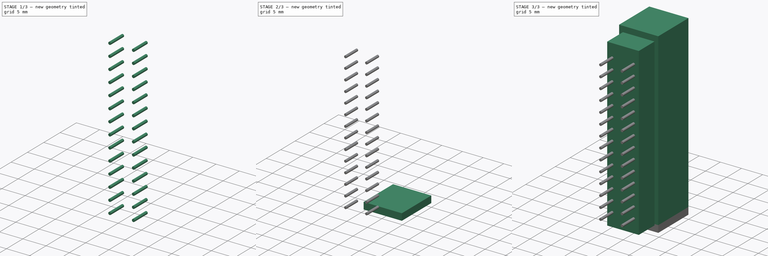
[diagram: build sequence overview — one tinted view per stage of 3, left to right]
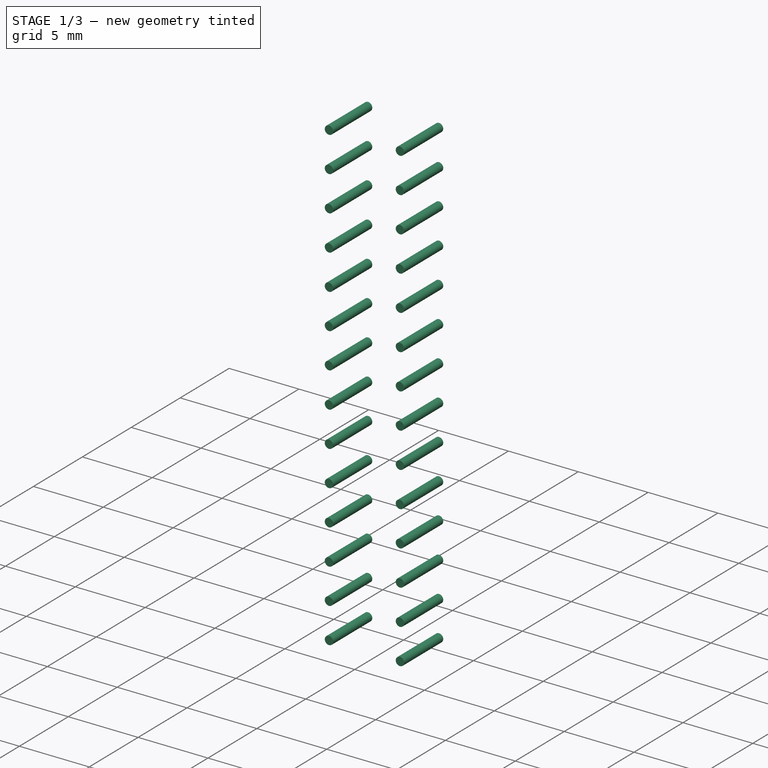
[diagram: stage 1 of 3 — iso view after this stage's code; geometry added in this stage tinted green]
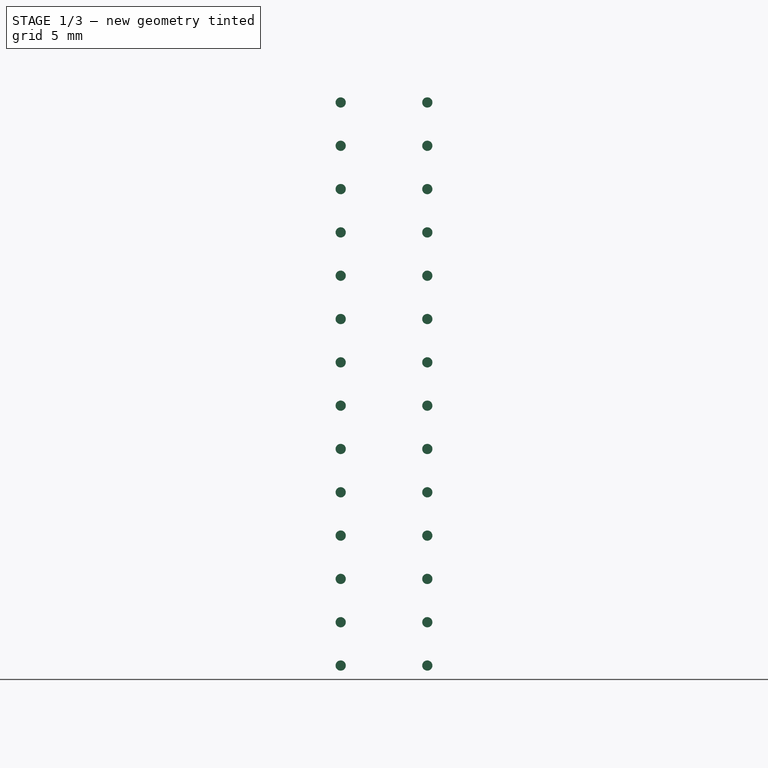
[diagram: stage 1 of 3 — front view after this stage's code; geometry added in this stage tinted green]
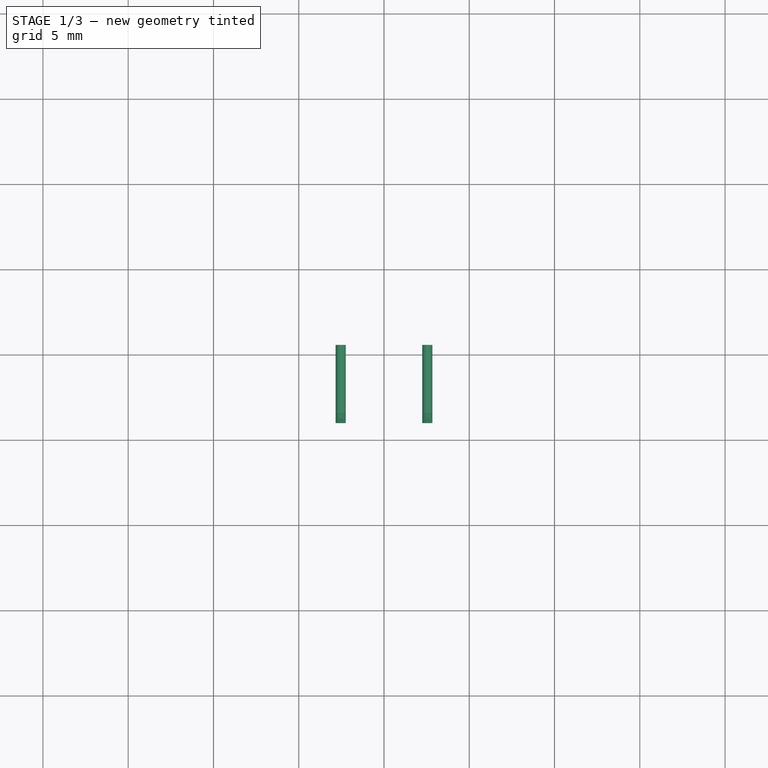
[diagram: stage 1 of 3 — top view after this stage's code; geometry added in this stage tinted green]
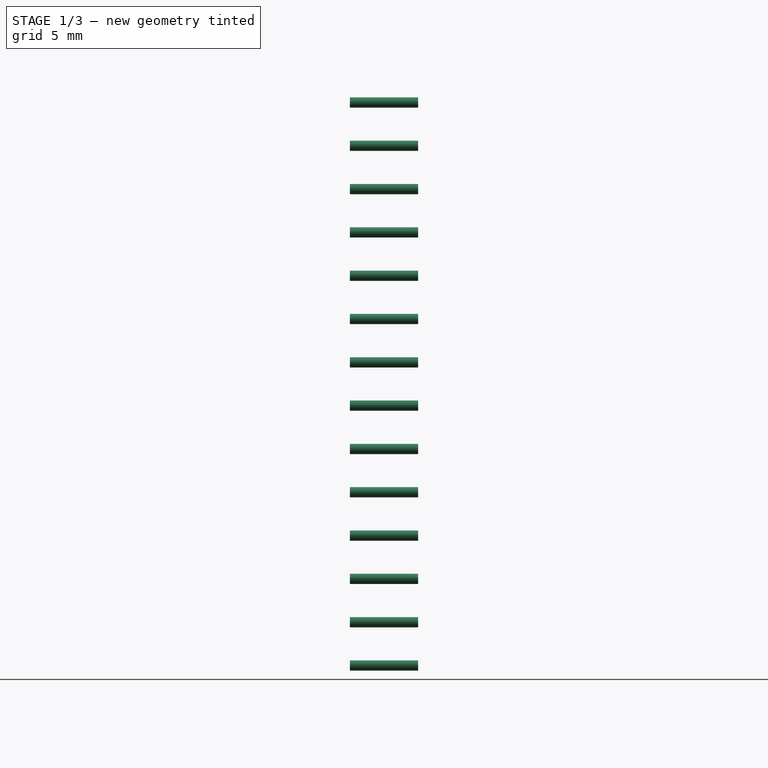
[diagram: stage 1 of 3 — right view after this stage's code; geometry added in this stage tinted green]
FCSTD DOCUMENT  (FreeCAD 1.0R39319 (Git))
Label: conector_femea_28
License: All rights reserved
LicenseURL: https://en.wikipedia.org/wiki/All_rights_reserved
objects: Sketcher::SketchObject×4, Part::Extrusion×4, Part::MultiFuse×1
note: 13 computed .brp shape members not serialized (recipe doc carries the construction recipe); baked Part::Feature solids carry a one-line shape summary decoded from their .brp

FEATURE [Sketcher::SketchObject] Sketch
  ArcFitTolerance = 1e-06
  FullyConstrained = true
  MakeInternals = false
  sketch-geometry (12):
    g0: LineSegment StartX=-4.63 StartY=15.48 StartZ=0 EndX=-4.63 EndY=5.3 EndZ=0
    g1: LineSegment StartX=4.63 StartY=5.3 StartZ=0 EndX=4.63 EndY=15.48 EndZ=0
    g2: LineSegment StartX=-3.735 StartY=5.3 StartZ=0 EndX=-3.735 EndY=0 EndZ=0
    g3: LineSegment StartX=-3.735 StartY=0 StartZ=0 EndX=3.735 EndY=0 EndZ=0
    g4: LineSegment StartX=3.735 StartY=0 StartZ=0 EndX=3.735 EndY=5.3 EndZ=0
    g5: LineSegment StartX=4.63 StartY=5.3 StartZ=0 EndX=3.735 EndY=5.3 EndZ=0
    g6: LineSegment StartX=-4.63 StartY=5.3 StartZ=0 EndX=-3.735 EndY=5.3 EndZ=0
    g7: LineSegment StartX=-4.63 StartY=15.48 StartZ=0 EndX=-1.17 EndY=15.48 EndZ=0
    g8: LineSegment StartX=4.63 StartY=15.48 StartZ=0 EndX=1.17 EndY=15.48 EndZ=0
    g9: LineSegment StartX=-1.17 StartY=8.6 StartZ=0 EndX=1.17 EndY=8.6 EndZ=0
    g10: LineSegment StartX=-1.17 StartY=15.48 StartZ=0 EndX=-1.17 EndY=8.6 EndZ=0
    g11: LineSegment StartX=1.17 StartY=15.48 StartZ=0 EndX=1.17 EndY=8.6 EndZ=0
  constraints (35):
    c: Vertical(g0)
    c: Vertical(g1)
    c: Distance(g0,g1) = 9.26
    c: Distance(g0,g0) = 10.18
    c: Coincident(g2,g3)
    c: Coincident(g3,g4)
    c: Vertical(g2)
    c: Vertical(g4)
    c: Horizontal(g3)
    c: Distance(g2,g4) = 7.47
    c: Distance(g3,g2) = 5.3
    c: Coincident(g5,g1)
    c: Coincident(g5,g4)
    c: Coincident(g6,g0)
    c: Coincident(g6,g2)
    c: Horizontal(g6)
    c: Horizontal(g5)
    c: Horizontal(g2,g4)
    c: Equal(g6,g5)
    c: Symmetric(g2,g3,g-1)
    c: Distance(g7) = 3.46
    c: Coincident(g7,g0)
    c: Horizontal(g7)
    c: Coincident(g8,g1)
    c: Horizontal(g8)
    c: Equal(g7,g8)
    c: Horizontal(g9)
    c: Coincident(g10,g7)
    c: Coincident(g10,g9)
    c: Coincident(g11,g8)
    c: Coincident(g11,g9)
    c: Vertical(g11)
    c: Vertical(g10)
    c: DistanceY(g10,g10) = 6.88
    c: Equal(g10,g11)
FEATURE [Part::Extrusion] Extrude
  Base = -> Sketch
  Dir = (0,0,1)
  DirMode = 2
  FaceMakerClass = Part::FaceMakerBullseye
  FaceMakerMode = 3
  LengthFwd = 39.3
  LengthRev = 0
  Solid = true
  Symmetric = false
FEATURE [Sketcher::SketchObject] Sketch003
  ArcFitTolerance = 1e-06
  AttachmentSupport = -> [Extrude]
  ExternalGeometry = -> [Extrude]
  FullyConstrained = true
  MakeInternals = false
  MapMode = 5
  Placement = pos=(0,0,0) rot=(1,0,0;1.5708rad)
  sketch-geometry (58):
    g0: LineSegment [constr] StartX=-2.54 StartY=36.16 StartZ=0 EndX=-2.54 EndY=33.62 EndZ=0
    g1: LineSegment [constr] StartX=-2.54 StartY=36.16 StartZ=0 EndX=0 EndY=36.16 EndZ=0
    g2: LineSegment [constr] StartX=-2e-16 StartY=36.16 StartZ=0 EndX=2.54 EndY=36.16 EndZ=0
    g3: LineSegment [constr] StartX=-2.54 StartY=33.62 StartZ=0 EndX=-2.54 EndY=31.08 EndZ=0
    g4: LineSegment [constr] StartX=-2.54 StartY=31.08 StartZ=0 EndX=-2.54 EndY=28.54 EndZ=0
    g5: LineSegment [constr] StartX=-2.54 StartY=28.54 StartZ=0 EndX=-2.54 EndY=26 EndZ=0
    g6: LineSegment [constr] StartX=-2.54 StartY=26 StartZ=0 EndX=-2.54 EndY=23.46 EndZ=0
    g7: LineSegment [constr] StartX=-2.54 StartY=23.46 StartZ=0 EndX=-2.54 EndY=20.92 EndZ=0
    g8: LineSegment [constr] StartX=-2.54 StartY=20.92 StartZ=0 EndX=-2.54 EndY=18.38 EndZ=0
    g9: LineSegment [constr] StartX=-2.54 StartY=18.38 StartZ=0 EndX=-2.54 EndY=15.84 EndZ=0
    g10: LineSegment [constr] StartX=-2.54 StartY=15.84 StartZ=0 EndX=-2.54 EndY=13.3 EndZ=0
    g11: LineSegment [constr] StartX=-2.54 StartY=13.3 StartZ=0 EndX=-2.54 EndY=10.76 EndZ=0
    g12: LineSegment [constr] StartX=-2.54 StartY=10.76 StartZ=0 EndX=-2.54 EndY=8.22 EndZ=0
    g13: LineSegment [constr] StartX=-2.54 StartY=8.22 StartZ=0 EndX=-2.54 EndY=5.68 EndZ=0
    g14: LineSegment [constr] StartX=-2.54 StartY=5.68 StartZ=0 EndX=-2.54 EndY=3.14 EndZ=0
    g15: LineSegment [constr] StartX=2.54 StartY=33.62 StartZ=0 EndX=2.54 EndY=31.08 EndZ=0
    g16: LineSegment [constr] StartX=2.54 StartY=31.08 StartZ=0 EndX=2.54 EndY=28.54 EndZ=0
    g17: LineSegment [constr] StartX=2.54 StartY=28.54 StartZ=0 EndX=2.54 EndY=26 EndZ=0
    g18: LineSegment [constr] StartX=2.54 StartY=26 StartZ=0 EndX=2.54 EndY=23.46 EndZ=0
    g19: LineSegment [constr] StartX=2.54 StartY=23.46 StartZ=0 EndX=2.54 EndY=20.92 EndZ=0
    g20: LineSegment [constr] StartX=2.54 StartY=20.92 StartZ=0 EndX=2.54 EndY=18.38 EndZ=0
    g21: LineSegment [constr] StartX=2.54 StartY=18.38 StartZ=0 EndX=2.54 EndY=15.84 EndZ=0
    g22: LineSegment [constr] StartX=2.54 StartY=15.84 StartZ=0 EndX=2.54 EndY=13.3 EndZ=0
    g23: LineSegment [constr] StartX=2.54 StartY=13.3 StartZ=0 EndX=2.54 EndY=10.76 EndZ=0
    g24: LineSegment [constr] StartX=2.54 StartY=10.76 StartZ=0 EndX=2.54 EndY=8.22 EndZ=0
    g25: LineSegment [constr] StartX=2.54 StartY=8.22 StartZ=0 EndX=2.54 EndY=5.68 EndZ=0
    g26: LineSegment [constr] StartX=2.54 StartY=5.68 StartZ=0 EndX=2.54 EndY=3.14 EndZ=0
    g27: LineSegment [constr] StartX=2.54 StartY=33.62 StartZ=0 EndX=2.54 EndY=36.16 EndZ=0
    g28: Circle CenterX=-2.54 CenterY=36.16 CenterZ=0 NormalX=0 NormalY=0 NormalZ=1 AngleXU=0 Radius=0.3
    g29: Circle CenterX=-2.54 CenterY=33.62 CenterZ=0 NormalX=0 NormalY=0 NormalZ=1 AngleXU=0 Radius=0.3
    g30: Circle CenterX=-2.54 CenterY=31.08 CenterZ=0 NormalX=0 NormalY=0 NormalZ=1 AngleXU=0 Radius=0.3
    g31: Circle CenterX=-2.54 CenterY=28.54 CenterZ=0 NormalX=0 NormalY=0 NormalZ=1 AngleXU=0 Radius=0.3
    g32: Circle CenterX=-2.54 CenterY=26 CenterZ=0 NormalX=0 NormalY=0 NormalZ=1 AngleXU=0 Radius=0.3
    g33: Circle CenterX=-2.54 CenterY=23.46 CenterZ=0 NormalX=0 NormalY=0 NormalZ=1 AngleXU=0 Radius=0.3
    g34: Circle CenterX=-2.54 CenterY=20.92 CenterZ=0 NormalX=0 NormalY=0 NormalZ=1 AngleXU=0 Radius=0.3
    g35: Circle CenterX=-2.54 CenterY=18.38 CenterZ=0 NormalX=0 NormalY=0 NormalZ=1 AngleXU=0 Radius=0.3
    g36: Circle CenterX=-2.54 CenterY=15.84 CenterZ=0 NormalX=0 NormalY=0 NormalZ=1 AngleXU=0 Radius=0.3
    g37: Circle CenterX=-2.54 CenterY=13.3 CenterZ=0 NormalX=0 NormalY=0 NormalZ=1 AngleXU=0 Radius=0.3
    g38: Circle CenterX=-2.54 CenterY=10.76 CenterZ=0 NormalX=0 NormalY=0 NormalZ=1 AngleXU=0 Radius=0.3
    g39: Circle CenterX=-2.54 CenterY=8.22 CenterZ=0 NormalX=0 NormalY=0 NormalZ=1 AngleXU=0 Radius=0.3
    g40: Circle CenterX=-2.54 CenterY=5.68 CenterZ=0 NormalX=0 NormalY=0 NormalZ=1 AngleXU=0 Radius=0.3
    g41: Circle CenterX=-2.54 CenterY=3.14 CenterZ=0 NormalX=0 NormalY=0 NormalZ=1 AngleXU=0 Radius=0.3
    g42: Circle CenterX=2.54 CenterY=3.14 CenterZ=0 NormalX=0 NormalY=0 NormalZ=1 AngleXU=0 Radius=0.3
    g43: Circle CenterX=2.54 CenterY=5.68 CenterZ=0 NormalX=0 NormalY=0 NormalZ=1 AngleXU=0 Radius=0.3
    g44: Circle CenterX=2.54 CenterY=8.22 CenterZ=0 NormalX=0 NormalY=0 NormalZ=1 AngleXU=0 Radius=0.3
    g45: Circle CenterX=2.54 CenterY=10.76 CenterZ=0 NormalX=0 NormalY=0 NormalZ=1 AngleXU=0 Radius=0.3
    g46: Circle CenterX=2.54 CenterY=13.3 CenterZ=0 NormalX=0 NormalY=0 NormalZ=1 AngleXU=0 Radius=0.3
    g47: Circle CenterX=2.54 CenterY=15.84 CenterZ=0 NormalX=0 NormalY=0 NormalZ=1 AngleXU=0 Radius=0.3
    g48: Circle CenterX=2.54 CenterY=18.38 CenterZ=0 NormalX=0 NormalY=0 NormalZ=1 AngleXU=0 Radius=0.3
    g49: Circle CenterX=2.54 CenterY=20.92 CenterZ=0 NormalX=0 NormalY=0 NormalZ=1 AngleXU=0 Radius=0.3
    g50: Circle CenterX=2.54 CenterY=23.46 CenterZ=0 NormalX=0 NormalY=0 NormalZ=1 AngleXU=0 Radius=0.3
    g51: Circle CenterX=2.54 CenterY=26 CenterZ=0 NormalX=0 NormalY=0 NormalZ=1 AngleXU=0 Radius=0.3
    g52: Circle CenterX=2.54 CenterY=28.54 CenterZ=0 NormalX=0 NormalY=0 NormalZ=1 AngleXU=0 Radius=0.3
    g53: Circle CenterX=2.54 CenterY=31.08 CenterZ=0 NormalX=0 NormalY=0 NormalZ=1 AngleXU=0 Radius=0.3
    g54: Circle CenterX=2.54 CenterY=33.62 CenterZ=0 NormalX=0 NormalY=0 NormalZ=1 AngleXU=0 Radius=0.3
    g55: Circle CenterX=2.54 CenterY=36.16 CenterZ=0 NormalX=0 NormalY=0 NormalZ=1 AngleXU=0 Radius=0.3
    g56: LineSegment [constr] StartX=-2e-16 StartY=39.3 StartZ=0 EndX=-2e-16 EndY=36.16 EndZ=0
    g57: LineSegment [constr] StartX=-1e-16 StartY=0 StartZ=0 EndX=6.2833e-12 EndY=3.14 EndZ=0
  constraints (145):
    c: Vertical(g0)
    c: Coincident(g1,g0)
    c: Horizontal(g1)
    c: Coincident(g2,g1)
    c: Horizontal(g2)
    c: Coincident(g3,g0)
    c: Vertical(g3)
    c: Coincident(g4,g3)
    c: Vertical(g4)
    c: Coincident(g5,g4)
    c: Vertical(g5)
    c: Distance(g0) = 2.54
    c: Vertical(g6)
    c: Coincident(g7,g6)
    c: Vertical(g7)
    c: Coincident(g8,g7)
    c: Vertical(g8)
    c: Equal(g0,g1)
    c: Equal(g1,g2)
    c: Equal(g2,g3)
    c: Equal(g3,g4)
    c: Equal(g4,g5)
    c: Equal(g5,g6)
    c: Equal(g6,g7)
    c: Equal(g7,g8)
    c: Coincident(g5,g6)
    c: Vertical(g9)
    c: Coincident(g10,g9)
    c: Vertical(g10)
    c: Coincident(g11,g10)
    c: Vertical(g11)
    c: Vertical(g12)
    c: Coincident(g13,g12)
    c: Vertical(g13)
    c: Coincident(g14,g13)
    c: Vertical(g14)
    c: Equal(g9,g10)
    c: Equal(g10,g11)
    c: Equal(g11,g12)
    c: Equal(g12,g13)
    c: Equal(g13,g14)
    c: Coincident(g11,g12)
    c: Equal(g9,g0)
    c: Coincident(g8,g9)
    c: Vertical(g15)
    c: Coincident(g16,g15)
    c: Vertical(g16)
    c: Coincident(g17,g16)
    c: Vertical(g17)
    c: Vertical(g18)
    c: Coincident(g19,g18)
    c: Vertical(g19)
    c: Coincident(g20,g19)
    c: Vertical(g20)
    c: Equal(g15,g16)
    c: Equal(g16,g17)
    c: Equal(g17,g18)
    c: Equal(g18,g19)
    c: Equal(g19,g20)
    c: Coincident(g17,g18)
    c: Vertical(g21)
    c: Coincident(g22,g21)
    c: Vertical(g22)
    c: Coincident(g23,g22)
    c: Vertical(g23)
    c: Vertical(g24)
    c: Coincident(g25,g24)
    c: Vertical(g25)
    c: Coincident(g26,g25)
    c: Vertical(g26)
    c: Equal(g21,g22)
    c: Equal(g22,g23)
    c: Equal(g23,g24)
    c: Equal(g24,g25)
    c: Equal(g25,g26)
    c: Coincident(g23,g24)
    c: Coincident(g20,g21)
    c: Coincident(g27,g15)
    c: Vertical(g27)
    c: Equal(g0,g27)
    c: Equal(g27,g15)
    c: Coincident(g2,g27)
    c: Equal(g21,g20)
    c: Diameter(g28) = 0.6
    c: Coincident(g28,g0)
    c: Coincident(g29,g0)
    c: Coincident(g30,g3)
    c: Coincident(g31,g4)
    c: Coincident(g32,g5)
    c: Coincident(g33,g6)
    c: Coincident(g34,g7)
    c: Coincident(g35,g8)
    c: Coincident(g36,g9)
    c: Coincident(g37,g10)
    c: Coincident(g38,g11)
    c: Coincident(g39,g12)
    c: Coincident(g40,g13)
    c: Coincident(g41,g14)
    c: Coincident(g42,g26)
    c: Coincident(g43,g25)
    c: Coincident(g44,g24)
    c: Coincident(g45,g23)
    c: Coincident(g46,g22)
    c: Coincident(g47,g21)
    c: Coincident(g48,g20)
    c: Coincident(g49,g19)
    c: Coincident(g50,g18)
    c: Coincident(g51,g17)
    c: Coincident(g52,g16)
    c: Coincident(g53,g15)
    c: Coincident(g54,g15)
    c: Coincident(g55,g2)
    c: Equal(g28,g29)
    c: Equal(g29,g55)
    c: Equal(g55,g54)
    c: Equal(g54,g53)
    c: Equal(g53,g30)
    c: Equal(g30,g31)
    c: Equal(g31,g52)
    c: Equal(g52,g51)
    c: Equal(g51,g32)
    c: Equal(g32,g33)
    c: Equal(g33,g34)
    c: Equal(g34,g50)
    c: Equal(g50,g49)
    c: Equal(g49,g48)
    c: Equal(g48,g47)
    c: Equal(g47,g35)
    c: Equal(g35,g36)
    c: Equal(g36,g37)
    c: Equal(g37,g38)
    c: Equal(g38,g46)
    c: Equal(g46,g45)
    c: Equal(g45,g39)
    c: Equal(g39,g40)
    c: Equal(g40,g41)
    c: Equal(g41,g42)
    c: Equal(g42,g43)
    c: Equal(g43,g44)
    c: Symmetric(g-3,g-3,g56)
    c: Coincident(g56,g1)
    c: Vertical(g56)
    c: Symmetric(g-4,g-4,g57)
    c: Symmetric(g14,g26,g57)
    c: Equal(g57,g56)
FEATURE [Part::Extrusion] Extrude003
  Base = -> Sketch003
  Dir = (0,-1,2e-16)
  DirMode = 2
  FaceMakerClass = Part::FaceMakerBullseye
  FaceMakerMode = 3
  LengthFwd = 4
  LengthRev = 0
  Solid = true
  Symmetric = false
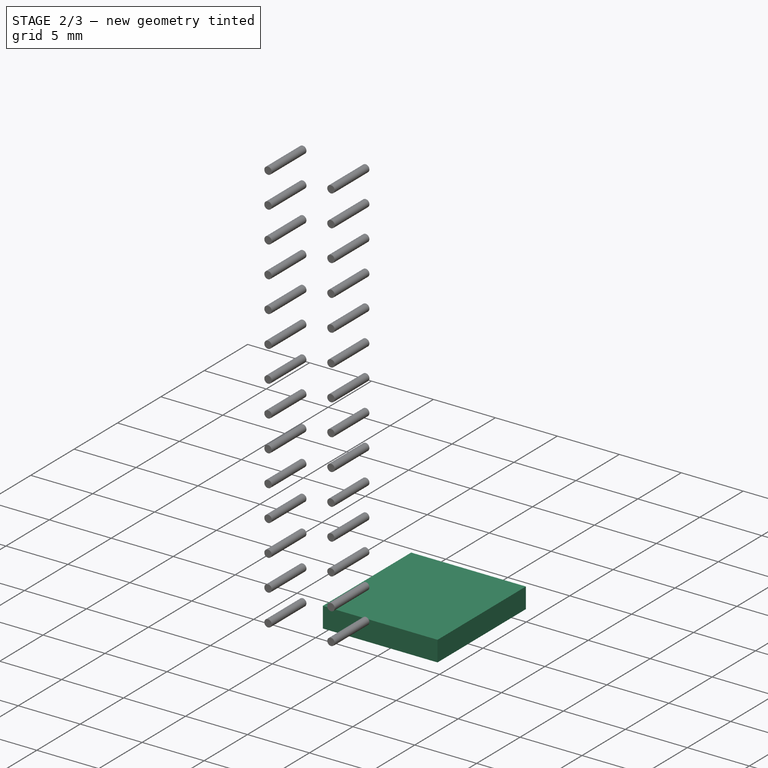
[diagram: stage 2 of 3 — iso view after this stage's code; geometry added in this stage tinted green]
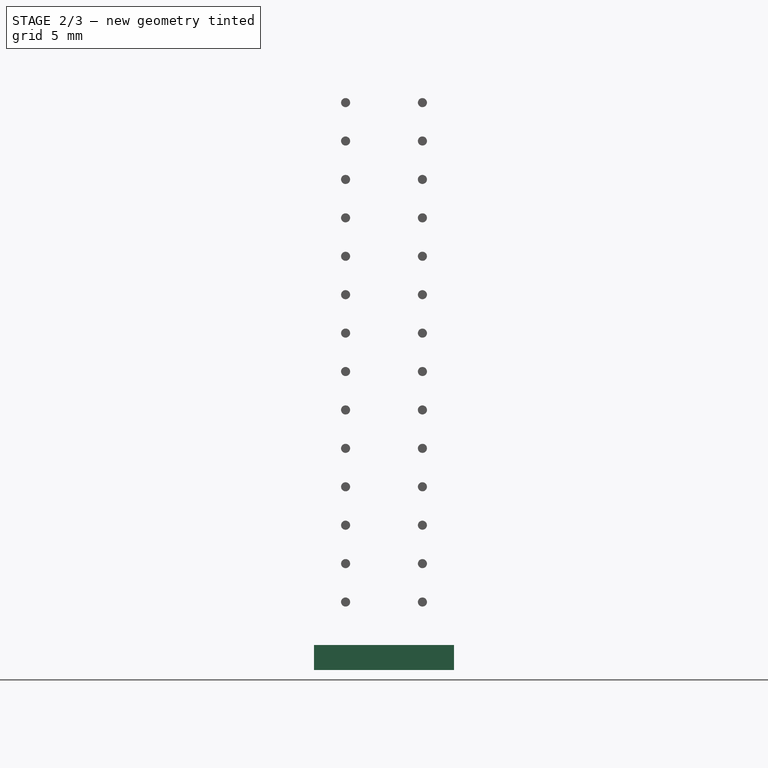
[diagram: stage 2 of 3 — front view after this stage's code; geometry added in this stage tinted green]
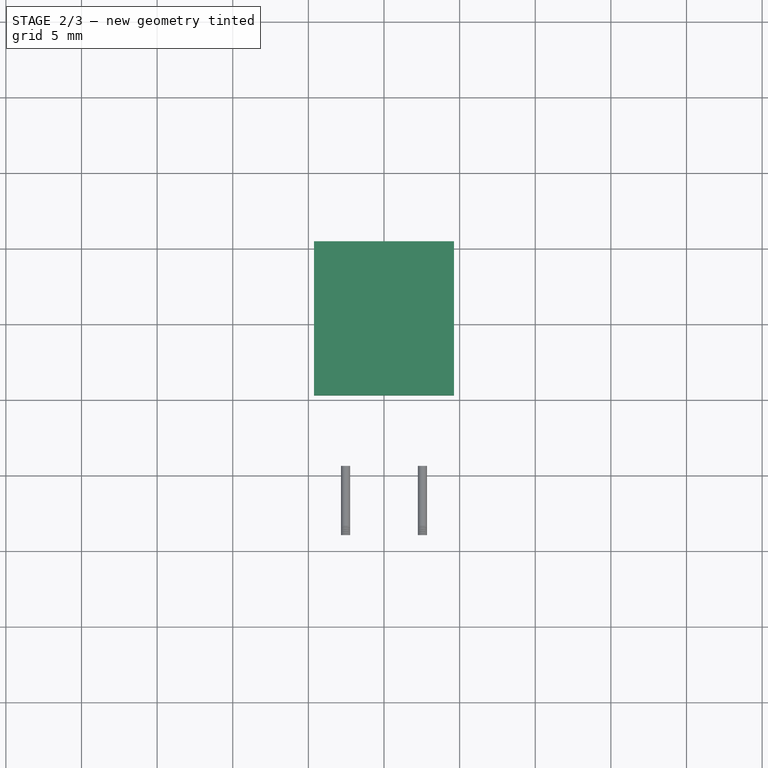
[diagram: stage 2 of 3 — top view after this stage's code; geometry added in this stage tinted green]
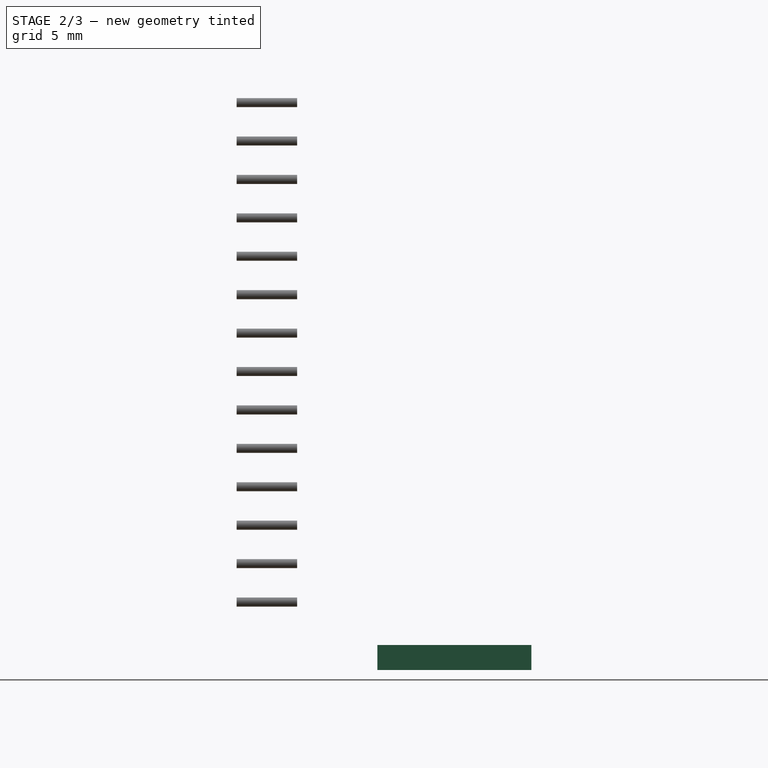
[diagram: stage 2 of 3 — right view after this stage's code; geometry added in this stage tinted green]
FEATURE [Sketcher::SketchObject] Sketch002
  ArcFitTolerance = 1e-06
  AttachmentSupport = -> [Extrude]
  ExternalGeometry = -> [Extrude]
  FullyConstrained = true
  MakeInternals = false
  MapMode = 5
  Placement = pos=(0,0,0) rot=(1,0,0;3.14159rad)
  sketch-geometry (4):
    g0: LineSegment StartX=-4.63 StartY=-5.3 StartZ=0 EndX=-4.63 EndY=-15.48 EndZ=0
    g1: LineSegment StartX=-4.63 StartY=-15.48 StartZ=0 EndX=4.63 EndY=-15.48 EndZ=0
    g2: LineSegment StartX=4.63 StartY=-15.48 StartZ=0 EndX=4.63 EndY=-5.3 EndZ=0
    g3: LineSegment StartX=4.63 StartY=-5.3 StartZ=0 EndX=-4.63 EndY=-5.3 EndZ=0
  constraints (10):
    c: Coincident(g0,g1)
    c: Coincident(g1,g2)
    c: Coincident(g2,g3)
    c: Coincident(g3,g0)
    c: Vertical(g0)
    c: Vertical(g2)
    c: Horizontal(g1)
    c: Horizontal(g3)
    c: Coincident(g0,g-3)
    c: Coincident(g1,g-4)
FEATURE [Part::Extrusion] Extrude002
  Base = -> Sketch002
  Dir = (0,0,-1)
  DirMode = 2
  FaceMakerClass = Part::FaceMakerBullseye
  FaceMakerMode = 3
  LengthFwd = 1.35
  LengthRev = 0.3
  Solid = true
  Symmetric = false
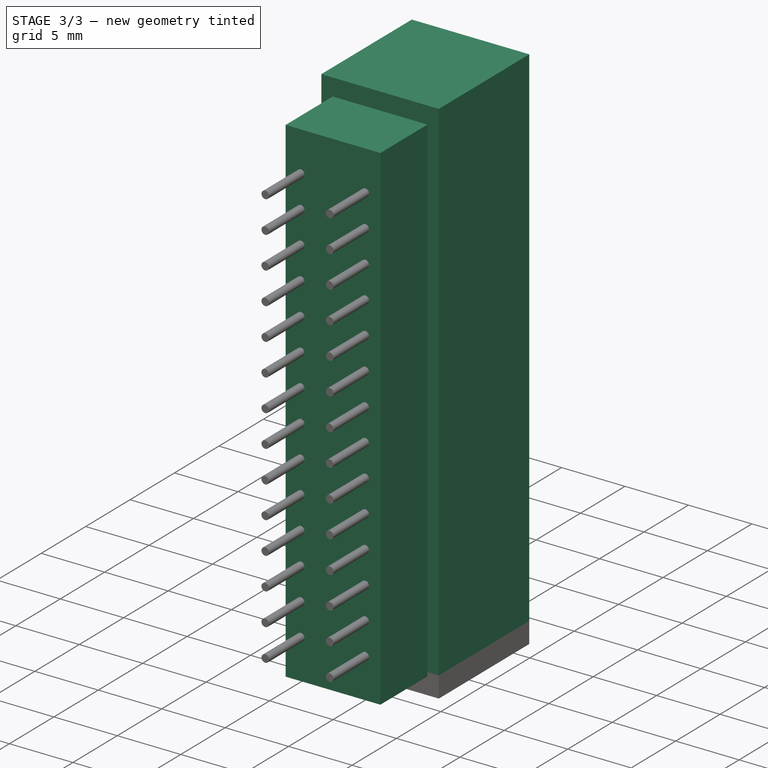
[diagram: stage 3 of 3 — iso view after this stage's code; geometry added in this stage tinted green]
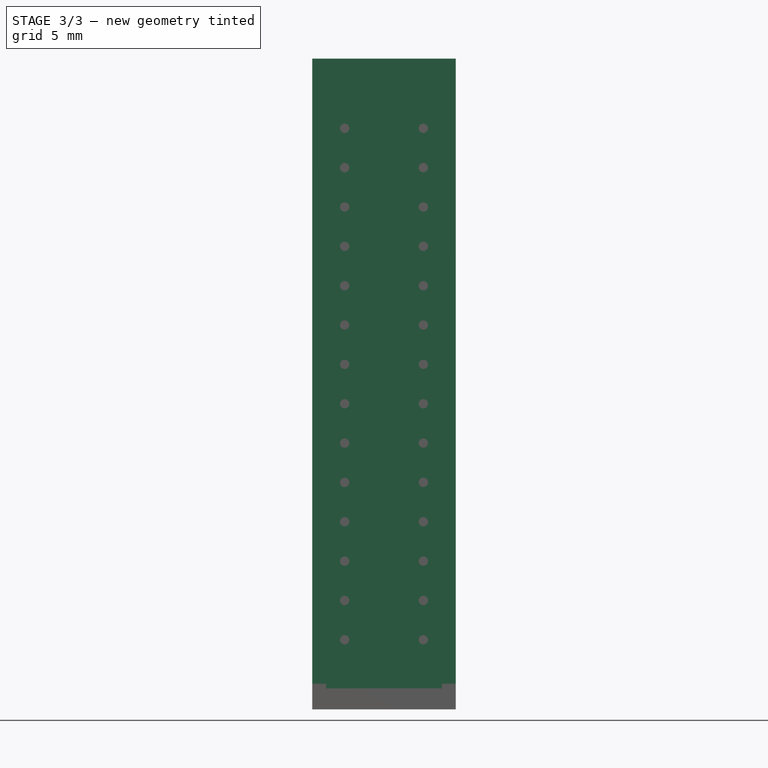
[diagram: stage 3 of 3 — front view after this stage's code; geometry added in this stage tinted green]
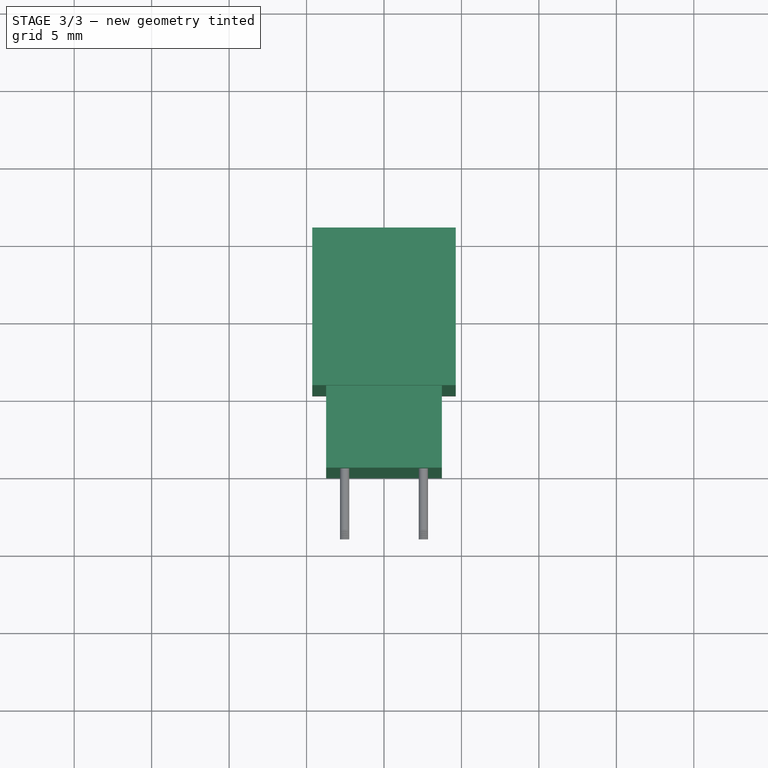
[diagram: stage 3 of 3 — top view after this stage's code; geometry added in this stage tinted green]
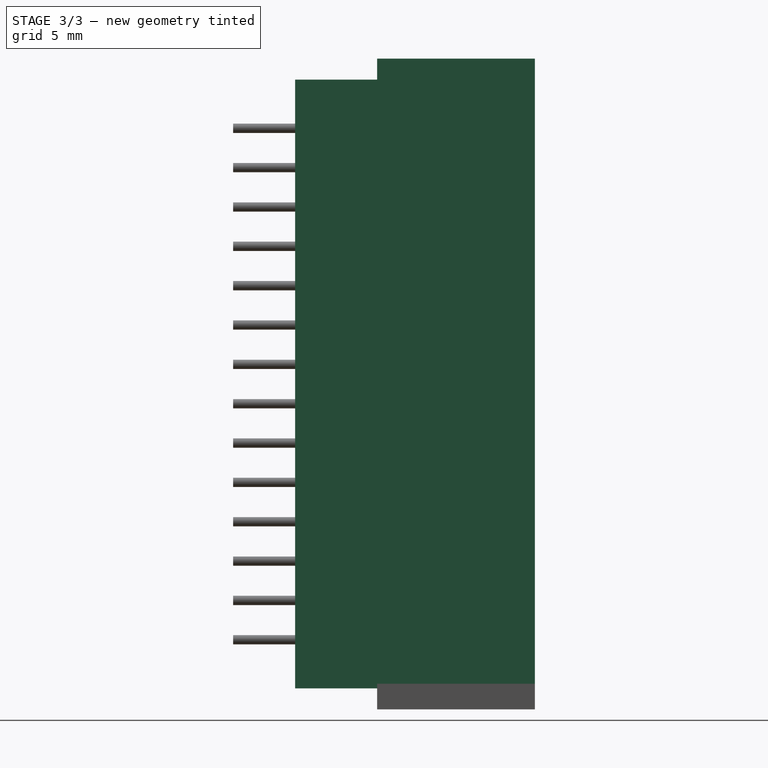
[diagram: stage 3 of 3 — right view after this stage's code; geometry added in this stage tinted green]
FEATURE [Sketcher::SketchObject] Sketch001
  ArcFitTolerance = 1e-06
  AttachmentSupport = -> [Extrude]
  ExternalGeometry = -> [Extrude]
  FullyConstrained = true
  MakeInternals = false
  MapMode = 5
  Placement = pos=(0,0,39.3) rot=(0,0,1;0rad)
  sketch-geometry (4):
    g0: LineSegment StartX=-4.63 StartY=15.48 StartZ=0 EndX=-4.63 EndY=5.3 EndZ=0
    g1: LineSegment StartX=-4.63 StartY=5.3 StartZ=0 EndX=4.63 EndY=5.3 EndZ=0
    g2: LineSegment StartX=4.63 StartY=5.3 StartZ=0 EndX=4.63 EndY=15.48 EndZ=0
    g3: LineSegment StartX=4.63 StartY=15.48 StartZ=0 EndX=-4.63 EndY=15.48 EndZ=0
  constraints (10):
    c: Coincident(g0,g1)
    c: Coincident(g1,g2)
    c: Coincident(g2,g3)
    c: Coincident(g3,g0)
    c: Vertical(g0)
    c: Vertical(g2)
    c: Horizontal(g1)
    c: Horizontal(g3)
    c: Coincident(g0,g-3)
    c: Coincident(g1,g-4)
FEATURE [Part::Extrusion] Extrude001
  Base = -> Sketch001
  Dir = (0,0,1)
  DirMode = 2
  FaceMakerClass = Part::FaceMakerBullseye
  FaceMakerMode = 3
  LengthFwd = 1.355
  LengthRev = 0.3
  Solid = true
  Symmetric = false
FEATURE [Part::MultiFuse] Fusion
  Shapes = -> [Extrude,Extrude001,Extrude002,Extrude003]
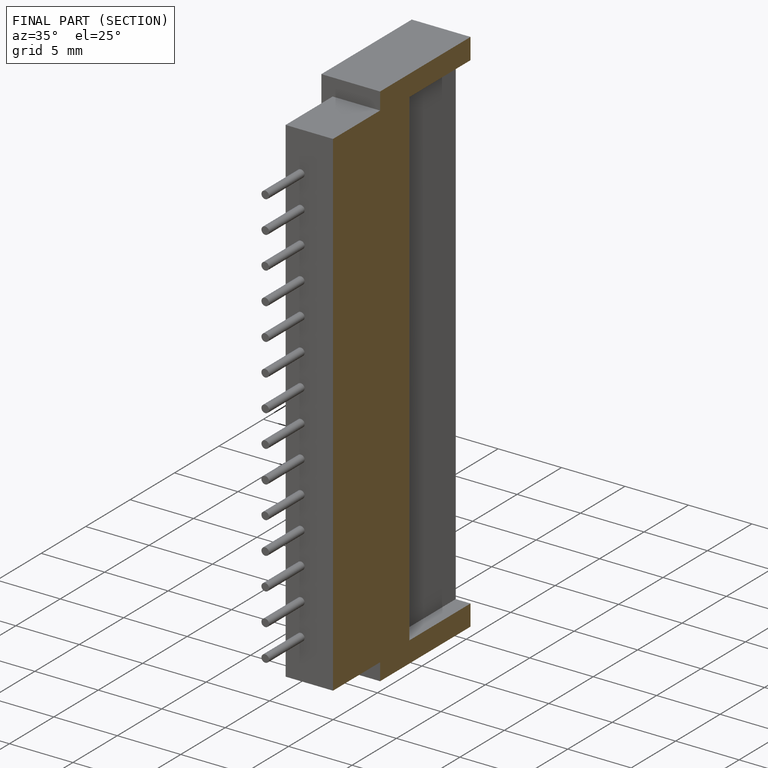
[diagram: finished part — half-section view (interior)]
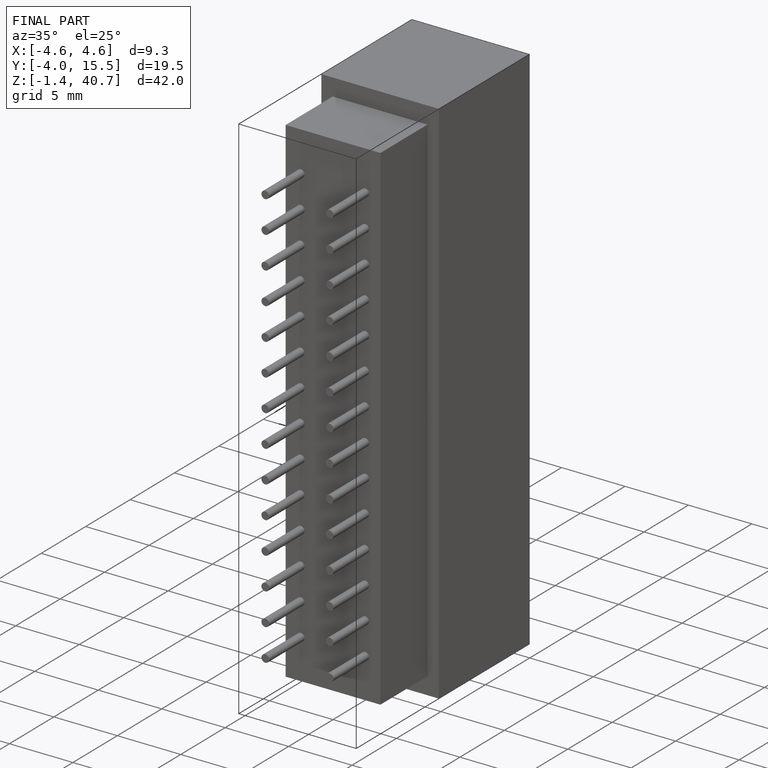
[diagram: finished part — iso view with bounding-box wireframe]
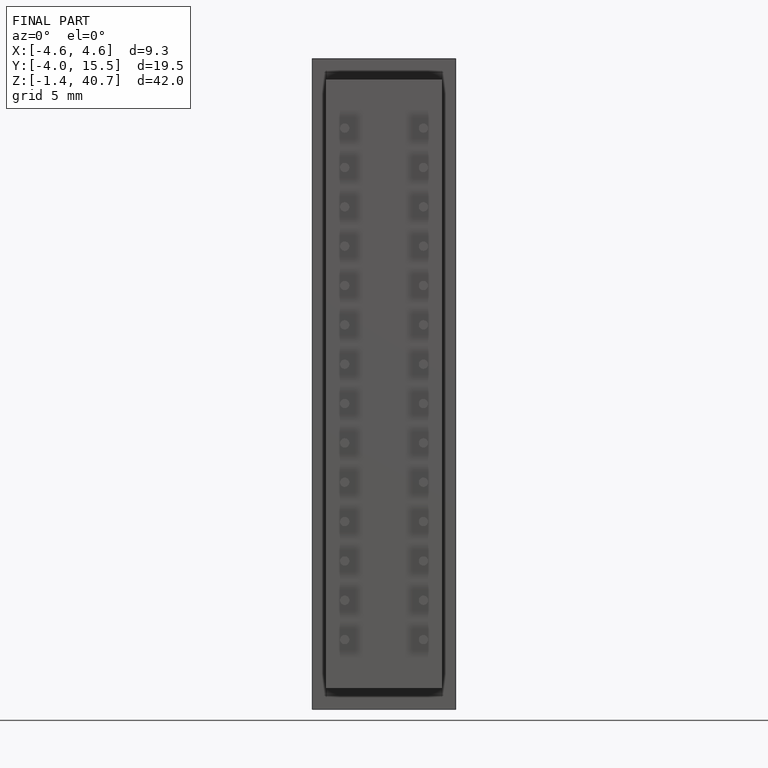
[diagram: finished part — front view with bounding-box wireframe]
